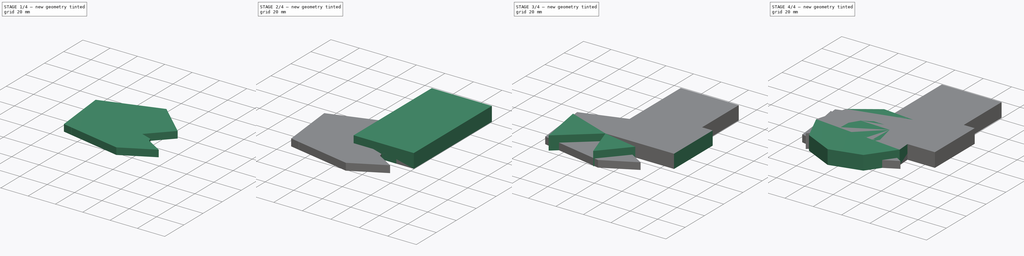
[diagram: build sequence overview — one tinted view per stage of 4, left to right]
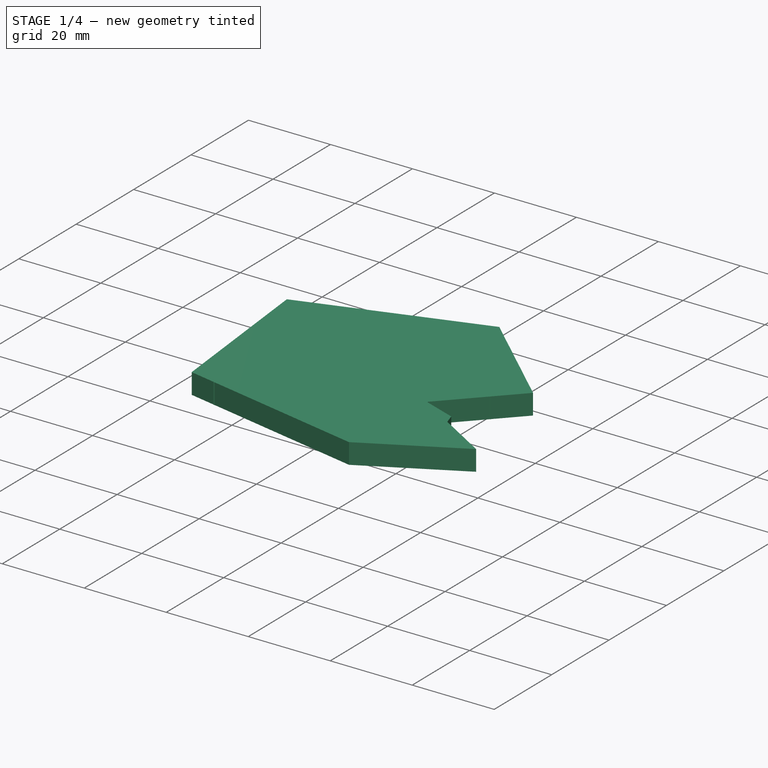
[diagram: stage 1 of 4 — iso view after this stage's code; geometry added in this stage tinted green]
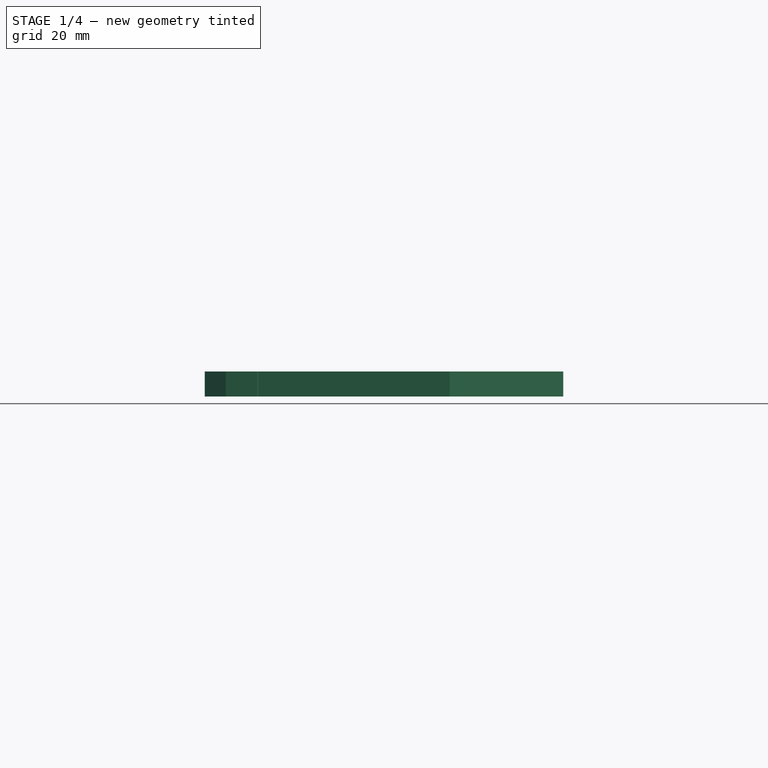
[diagram: stage 1 of 4 — front view after this stage's code; geometry added in this stage tinted green]
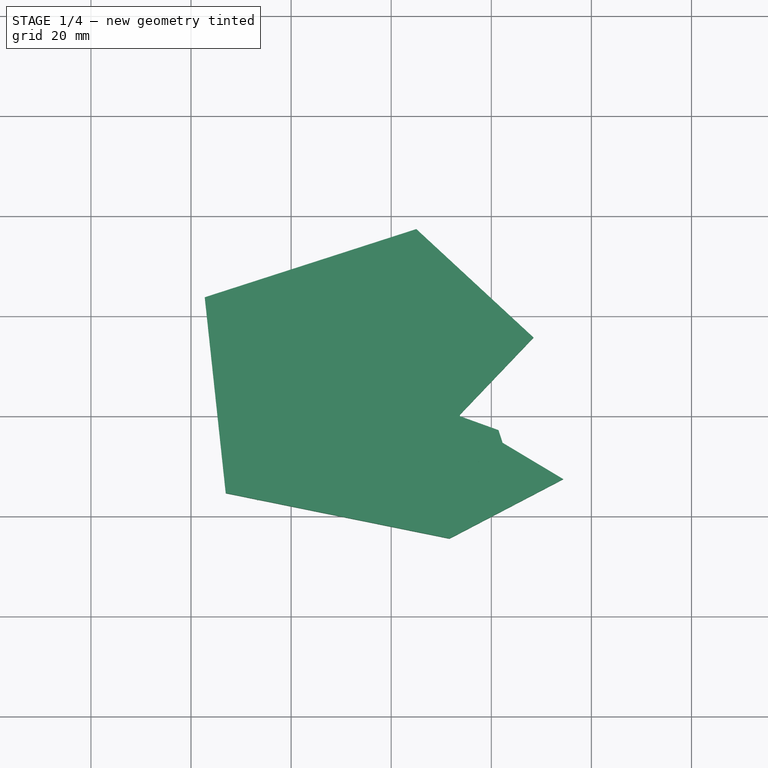
[diagram: stage 1 of 4 — top view after this stage's code; geometry added in this stage tinted green]
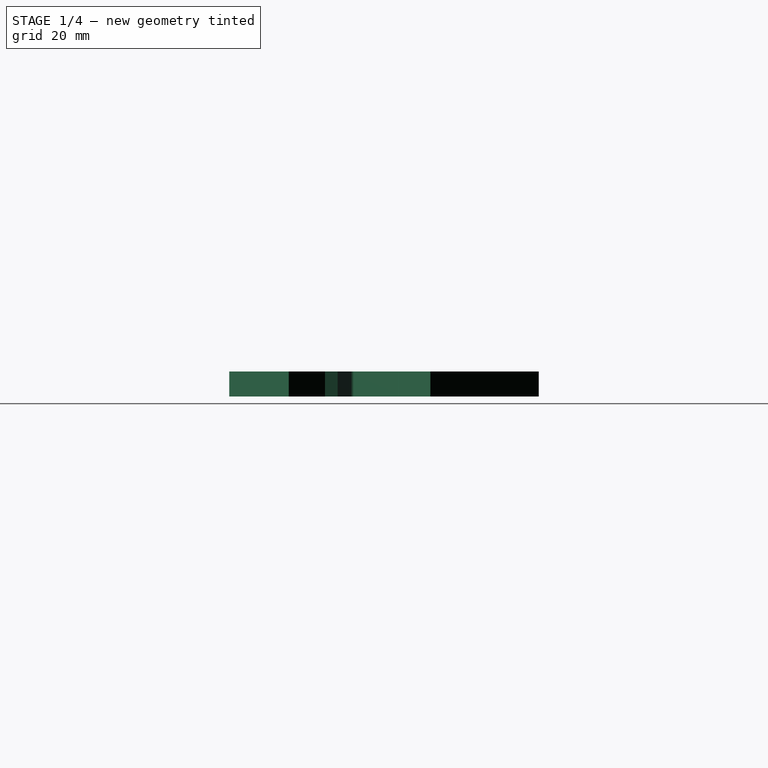
[diagram: stage 1 of 4 — right view after this stage's code; geometry added in this stage tinted green]
FCSTD DOCUMENT  (FreeCAD 0.19R)
Label: Model 09
License: All rights reserved
LicenseURL: http://en.wikipedia.org/wiki/All_rights_reserved
objects: Sketcher::SketchObject×12, PartDesign::Pad×12, PartDesign::Body×12
note: 48 computed .brp shape members not serialized (recipe doc carries the construction recipe); baked Part::Feature solids carry a one-line shape summary decoded from their .brp

FEATURE [PartDesign::Body] Body028
  Group = -> [Sketch031,Pad018]
  Origin = -> Origin019
  Placement = pos=(-42.1888,-78.2414,0) rot=(0,0,1;0rad)
  Tip = -> Pad018
FEATURE [Sketcher::SketchObject] Sketch032
  FullyConstrained = false
  MapMode = 5
  Support = -> [XY_Plane035]
  sketch-geometry (7):
    g0: LineSegment StartX=13.409 StartY=0 StartZ=0 EndX=28.4323 EndY=15.7395 EndZ=0
    g1: LineSegment StartX=28.4323 StartY=15.7395 StartZ=0 EndX=5.02388 EndY=37.401 EndZ=0
    g2: LineSegment StartX=5.02388 StartY=37.401 StartZ=0 EndX=-37.251 EndY=23.7752 EndZ=0
    g3: LineSegment StartX=-37.251 StartY=23.7752 StartZ=0 EndX=-33.0585 EndY=-15.3553 EndZ=0
    g4: LineSegment StartX=-33.0585 StartY=-15.3553 StartZ=0 EndX=11.6621 EndY=-24.4391 EndZ=0
    g5: LineSegment StartX=11.6621 StartY=-24.4391 StartZ=0 EndX=34.3717 EndY=-12.5602 EndZ=0
    g6: LineSegment StartX=34.3717 StartY=-12.5602 StartZ=0 EndX=13.409 EndY=0 EndZ=0
  constraints (8):
    c: PointOnObject(g0,g-1)
    c: Coincident(g0,g1)
    c: Coincident(g1,g2)
    c: Coincident(g2,g3)
    c: Coincident(g3,g4)
    c: Coincident(g4,g5)
    c: Coincident(g5,g6)
    c: Coincident(g6,g0)
FEATURE [PartDesign::Pad] Pad033
  Direction = (1,1,1)
  Length = 5
  Length2 = 100
  Profile = -> Sketch032
  Type = 0
FEATURE [PartDesign::Body] Body033
  Group = -> [Sketch032,Pad033]
  Origin = -> Origin031
  Placement = pos=(-34.3718,-37.401,0) rot=(0,0,1;0rad)
  Tip = -> Pad033
FEATURE [Sketcher::SketchObject] Sketch035
  FullyConstrained = false
  MapMode = 5
  Support = -> [XY_Plane034]
  sketch-geometry (12):
    g0: LineSegment StartX=13.7584 StartY=0 StartZ=0 EndX=12.0115 EndY=9.80005 EndZ=0
    g1: LineSegment StartX=12.0115 StartY=9.80005 StartZ=0 EndX=-4.40937 EndY=11.8963 EndZ=0
    g2: LineSegment StartX=-4.40937 StartY=11.8963 StartZ=0 EndX=-28.5165 EndY=11.8963 EndZ=0
    g3: LineSegment StartX=-28.5165 StartY=11.8963 StartZ=0 EndX=-29.5647 EndY=0 EndZ=0
    g4: LineSegment StartX=-29.5647 StartY=0 StartZ=0 EndX=-24.6734 EndY=-3.47636 EndZ=0
    g5: LineSegment StartX=-24.6734 StartY=-3.47636 StartZ=0 EndX=-26.7696 EndY=-16.7528 EndZ=0
    g6: LineSegment StartX=-26.7696 StartY=-16.7528 StartZ=0 EndX=-8.6019 EndY=-11.1627 EndZ=0
    g7: LineSegment StartX=-8.6019 StartY=-11.1627 StartZ=0 EndX=4.32512 EndY=-16.054 EndZ=0
    g8: LineSegment StartX=4.32512 StartY=-16.054 StartZ=0 EndX=16.5534 EndY=-8.71706 EndZ=0
    g9: LineSegment StartX=16.5534 StartY=-8.71706 StartZ=0 EndX=24.2397 EndY=-11.5121 EndZ=0
    g10: LineSegment StartX=24.2397 StartY=-11.5121 StartZ=0 EndX=21.4447 EndY=-2.77761 EndZ=0
    g11: LineSegment StartX=21.4447 StartY=-2.77761 StartZ=0 EndX=13.7584 EndY=0 EndZ=0
  constraints (15):
    c: PointOnObject(g0,g-1)
    c: Coincident(g0,g1)
    c: Coincident(g1,g2)
    c: Horizontal(g2)
    c: Coincident(g2,g3)
    c: PointOnObject(g3,g-1)
    c: Coincident(g3,g4)
    c: Coincident(g4,g5)
    c: Coincident(g5,g6)
    c: Coincident(g6,g7)
    c: Coincident(g7,g8)
    c: Coincident(g8,g9)
    c: Coincident(g9,g10)
    c: Coincident(g10,g11)
    c: Coincident(g11,g0)
FEATURE [Sketcher::SketchObject] Sketch038
  FullyConstrained = false
  MapMode = 5
  Support = -> [XY_Plane036]
  sketch-geometry (10):
    g0: LineSegment StartX=0 StartY=23.4258 StartZ=0 EndX=7.12016 EndY=10.4988 EndZ=0
    g1: LineSegment StartX=7.12016 StartY=10.4988 StartZ=0 EndX=22.4928 EndY=9.45067 EndZ=0
    g2: LineSegment StartX=22.4928 StartY=9.45067 StartZ=0 EndX=8.16829 EndY=-2.07885 EndZ=0
    g3: LineSegment StartX=8.16829 StartY=-2.07885 StartZ=0 EndX=14.1077 EndY=-16.7528 EndZ=0
    g4: LineSegment StartX=14.1077 StartY=-16.7528 StartZ=0 EndX=0 EndY=-10.1146 EndZ=0
    g5: LineSegment StartX=0 StartY=-10.1146 StartZ=0 EndX=-11.0476 EndY=-18.1503 EndZ=0
    g6: LineSegment StartX=-11.0476 StartY=-18.1503 StartZ=0 EndX=-7.90316 EndY=0 EndZ=0
    g7: LineSegment StartX=-7.90316 StartY=0 StartZ=0 EndX=-19.0833 EndY=10.4988 EndZ=0
    g8: LineSegment StartX=-19.0833 StartY=10.4988 StartZ=0 EndX=-6.50564 EndY=10.4988 EndZ=0
    g9: LineSegment StartX=-6.50564 StartY=10.4988 StartZ=0 EndX=0 EndY=23.4258 EndZ=0
  constraints (14):
    c: PointOnObject(g0,g-2)
    c: Coincident(g0,g1)
    c: Coincident(g1,g2)
    c: Coincident(g2,g3)
    c: Coincident(g3,g4)
    c: PointOnObject(g4,g-2)
    c: Coincident(g4,g5)
    c: Coincident(g5,g6)
    c: PointOnObject(g6,g-1)
    c: Coincident(g6,g7)
    c: Coincident(g7,g8)
    c: Horizontal(g8)
    c: Coincident(g8,g9)
    c: Coincident(g9,g0)
FEATURE [PartDesign::Pad] Pad034
  Direction = (1,1,1)
  Length = 5
  Length2 = 100
  Profile = -> Sketch038
  Type = 0
FEATURE [PartDesign::Body] Body036
  Group = -> [Sketch038,Pad034]
  Origin = -> Origin036
  Placement = pos=(-22.4928,-23.4258,0) rot=(0,0,1;0rad)
  Tip = -> Pad034
FEATURE [PartDesign::Pad] Pad037
  Direction = (1,1,1)
  Length = 5
  Length2 = 100
  Profile = -> Sketch035
  Type = 0
FEATURE [PartDesign::Body] Body034
  Group = -> [Sketch035,Pad037]
  Origin = -> Origin032
  Placement = pos=(-24.2397,-11.8963,0) rot=(0,0,1;0rad)
  Tip = -> Pad037
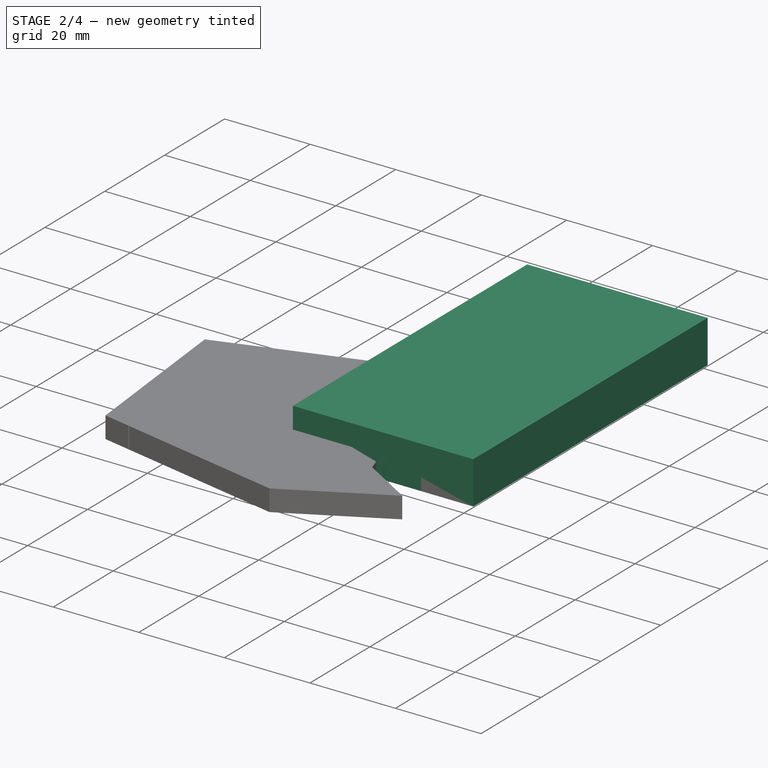
[diagram: stage 2 of 4 — iso view after this stage's code; geometry added in this stage tinted green]
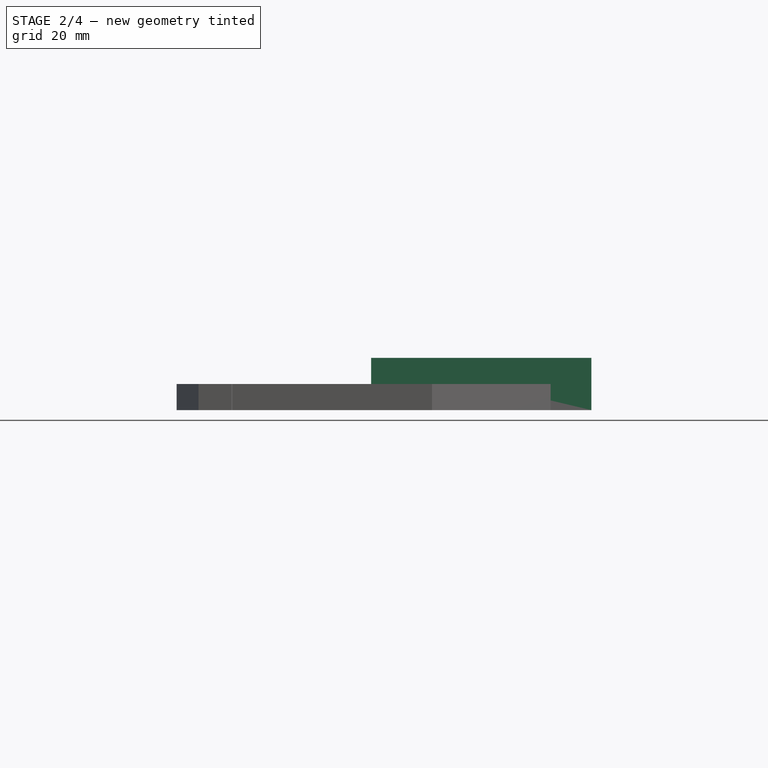
[diagram: stage 2 of 4 — front view after this stage's code; geometry added in this stage tinted green]
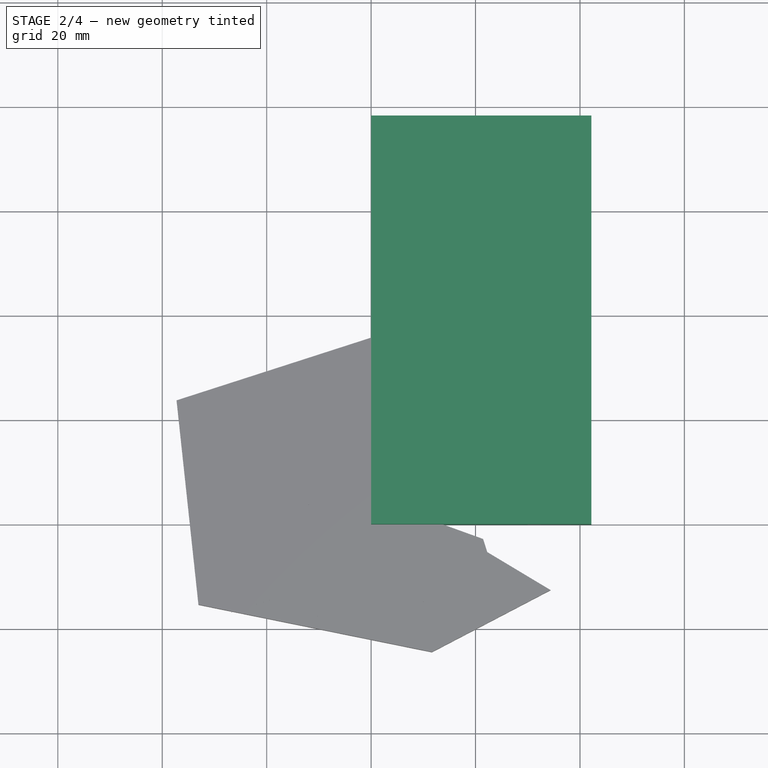
[diagram: stage 2 of 4 — top view after this stage's code; geometry added in this stage tinted green]
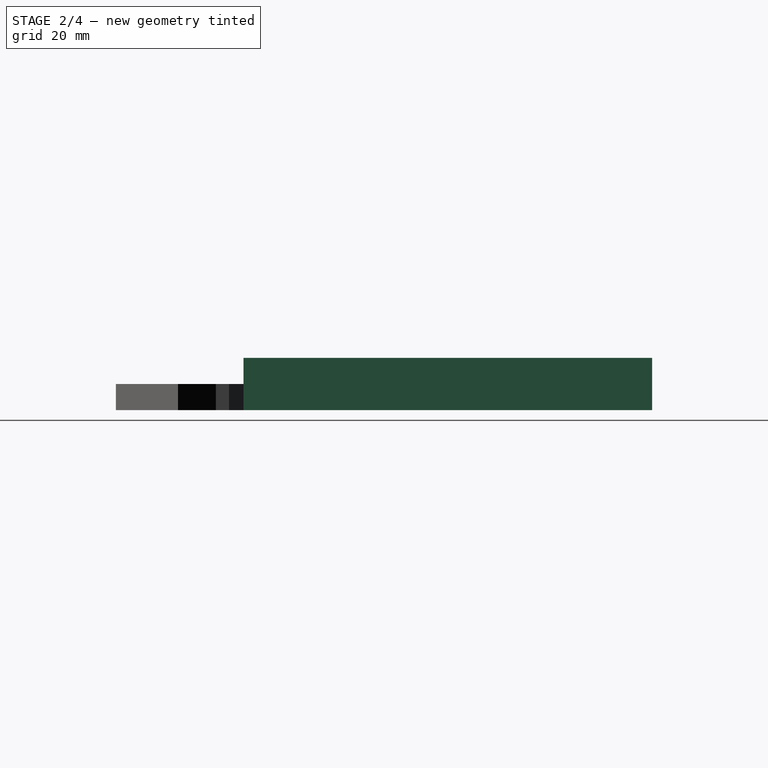
[diagram: stage 2 of 4 — right view after this stage's code; geometry added in this stage tinted green]
FEATURE [PartDesign::Body] Body014
  Group = -> [Sketch015,Pad015]
  Origin = -> Origin014
  Placement = pos=(0,-11.8118,0) rot=(0,0,1;0rad)
  Tip = -> Pad015
FEATURE [Sketcher::SketchObject] Sketch020
  FullyConstrained = false
  MapMode = 5
  Support = -> [XY_Plane019]
  sketch-geometry (4):
    g0: LineSegment StartX=0 StartY=0 StartZ=0 EndX=20.0157 EndY=0 EndZ=0
    g1: LineSegment StartX=20.0157 StartY=0 StartZ=0 EndX=20.0157 EndY=44.9765 EndZ=0
    g2: LineSegment StartX=20.0157 StartY=44.9765 StartZ=0 EndX=0 EndY=44.9765 EndZ=0
    g3: LineSegment StartX=0 StartY=44.9765 StartZ=0 EndX=0 EndY=0 EndZ=0
  constraints (9):
    c: Coincident(g0,g1)
    c: Coincident(g1,g2)
    c: Coincident(g2,g3)
    c: Coincident(g3,g0)
    c: Horizontal(g0)
    c: Horizontal(g2)
    c: Vertical(g1)
    c: Vertical(g3)
    c: Coincident(g0,g-1)
FEATURE [PartDesign::Pad] Pad020
  Direction = (1,1,1)
  Length = 10
  Length2 = 100
  Profile = -> Sketch020
  Type = 0
FEATURE [PartDesign::Body] Body024
  Group = -> [Sketch026,Pad022]
  Origin = -> Origin023
  Placement = pos=(-49.8752,-40.1592,0) rot=(0,0,1;0rad)
  Tip = -> Pad022
FEATURE [Sketcher::SketchObject] Sketch029
  FullyConstrained = false
  MapMode = 5
  Support = -> [XY_Plane023]
  sketch-geometry (4):
    g0: LineSegment StartX=0 StartY=0 StartZ=0 EndX=29.9606 EndY=0 EndZ=0
    g1: LineSegment StartX=29.9606 StartY=0 StartZ=0 EndX=29.9606 EndY=30.0272 EndZ=0
    g2: LineSegment StartX=29.9606 StartY=30.0272 StartZ=0 EndX=0 EndY=30.0272 EndZ=0
    g3: LineSegment StartX=0 StartY=30.0272 StartZ=0 EndX=0 EndY=0 EndZ=0
  constraints (9):
    c: Coincident(g0,g1)
    c: Coincident(g1,g2)
    c: Coincident(g2,g3)
    c: Coincident(g3,g0)
    c: Horizontal(g0)
    c: Horizontal(g2)
    c: Vertical(g1)
    c: Vertical(g3)
    c: Coincident(g0,g-1)
FEATURE [PartDesign::Pad] Pad021
  Direction = (1,1,1)
  Length = 10
  Length2 = 100
  Profile = -> Sketch029
  Type = 0
FEATURE [PartDesign::Body] Body026
  Group = -> [Sketch029,Pad021]
  Origin = -> Origin029
  Placement = pos=(-29.9606,-30.0272,0) rot=(0,0,1;0rad)
  Tip = -> Pad021
FEATURE [PartDesign::Body] Body030
  Group = -> [Sketch020,Pad020]
  Origin = -> Origin028
  Placement = pos=(-20.0157,-44.9765,0) rot=(0,0,1;0rad)
  Tip = -> Pad020
FEATURE [Sketcher::SketchObject] Sketch031
  FullyConstrained = false
  MapMode = 5
  Support = -> [XY_Plane020]
  sketch-geometry (4):
    g0: LineSegment StartX=0 StartY=0 StartZ=0 EndX=42.1888 EndY=0 EndZ=0
    g1: LineSegment StartX=42.1888 StartY=0 StartZ=0 EndX=42.1888 EndY=78.2414 EndZ=0
    g2: LineSegment StartX=42.1888 StartY=78.2414 StartZ=0 EndX=0 EndY=78.2414 EndZ=0
    g3: LineSegment StartX=0 StartY=78.2414 StartZ=0 EndX=0 EndY=0 EndZ=0
  constraints (9):
    c: Coincident(g0,g1)
    c: Coincident(g1,g2)
    c: Coincident(g2,g3)
    c: Coincident(g3,g0)
    c: Horizontal(g0)
    c: Horizontal(g2)
    c: Vertical(g1)
    c: Vertical(g3)
    c: Coincident(g0,g-1)
FEATURE [PartDesign::Pad] Pad018
  Direction = (1,1,1)
  Length = 10
  Length2 = 100
  Profile = -> Sketch031
  Type = 0
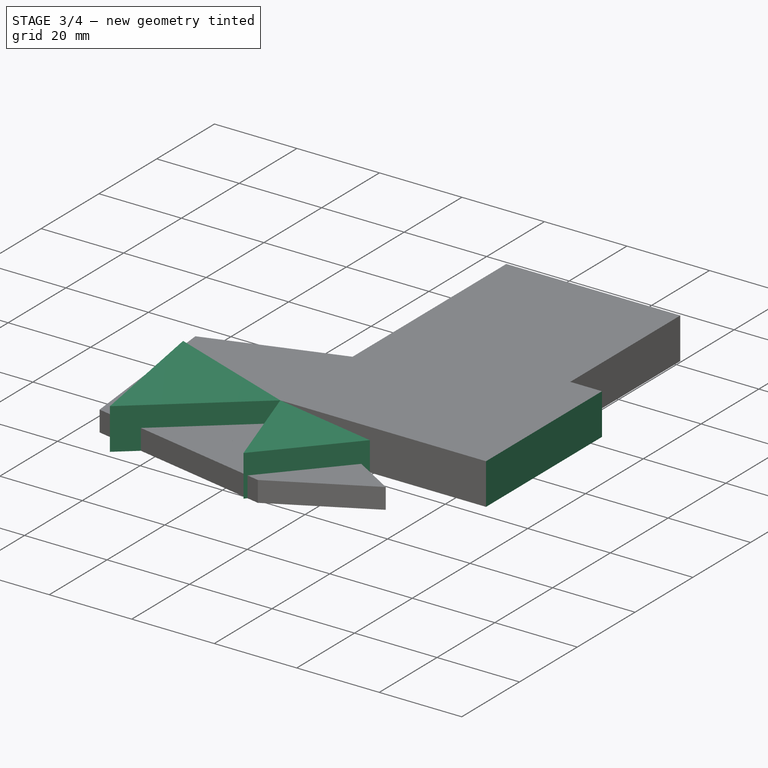
[diagram: stage 3 of 4 — iso view after this stage's code; geometry added in this stage tinted green]
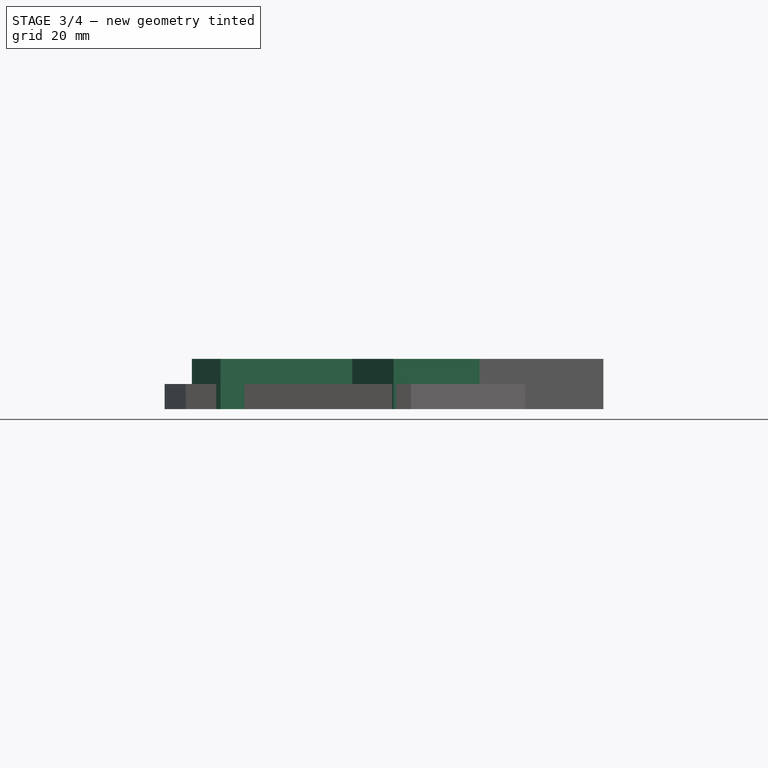
[diagram: stage 3 of 4 — front view after this stage's code; geometry added in this stage tinted green]
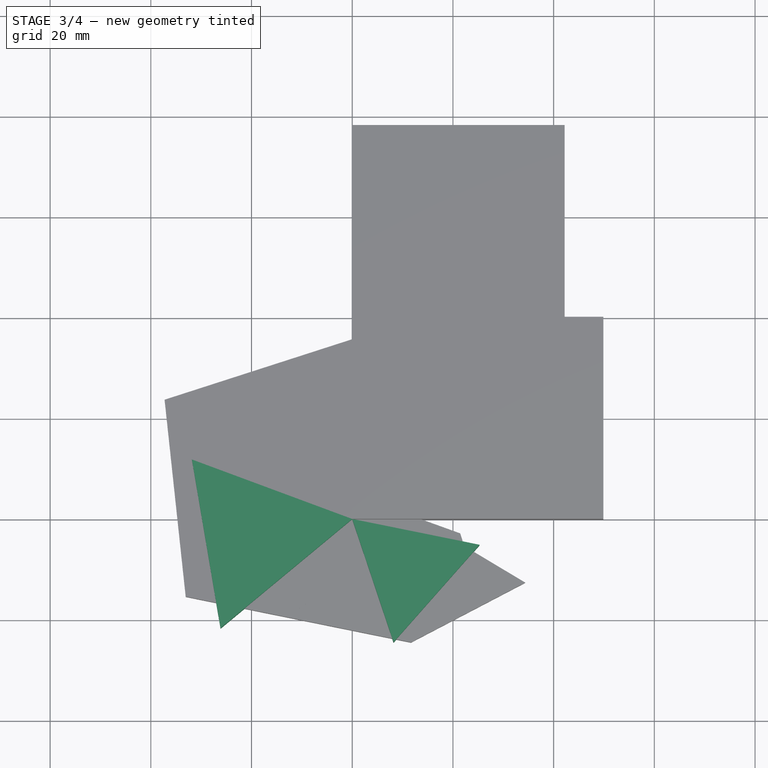
[diagram: stage 3 of 4 — top view after this stage's code; geometry added in this stage tinted green]
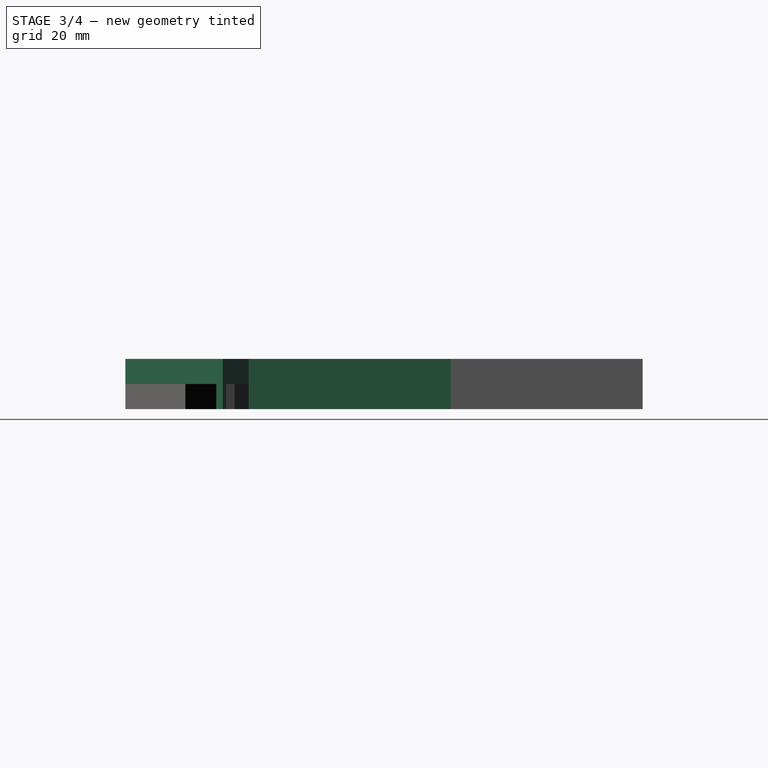
[diagram: stage 3 of 4 — right view after this stage's code; geometry added in this stage tinted green]
FEATURE [PartDesign::Body] Body005
  Group = -> [Sketch005,Pad005]
  Origin = -> Origin005
  Placement = pos=(-13.3377,-17.1407,0) rot=(0,0,1;0rad)
  Tip = -> Pad005
FEATURE [Sketcher::SketchObject] Sketch011
  FullyConstrained = false
  MapMode = 5
  Support = -> [XY_Plane013]
  sketch-geometry (4):
    g0: LineSegment StartX=0 StartY=0 StartZ=0 EndX=8.20584 EndY=-24.4653 EndZ=0
    g1: LineSegment StartX=8.20584 StartY=-24.4653 StartZ=0 EndX=25.2905 EndY=-5.12617 EndZ=0
    g2: LineSegment StartX=25.2905 StartY=-5.12617 StartZ=0 EndX=0 EndY=0 EndZ=0
    g3: Circle CenterX=11.1654 CenterY=-9.86381 CenterZ=0 NormalX=0 NormalY=0 NormalZ=1 AngleXU=0 Radius=14.8984
  constraints (9):
    c: Coincident(g0,g1)
    c: Coincident(g1,g2)
    c: Coincident(g2,g0)
    c: Equal(g0,g1)
    c: Equal(g0,g2)
    c: PointOnObject(g0,g3)
    c: PointOnObject(g1,g3)
    c: PointOnObject(g2,g3)
    c: Coincident(g2,g-1)
FEATURE [PartDesign::Pad] Pad010
  Direction = (1,1,1)
  Length = 10
  Length2 = 100
  Profile = -> Sketch011
  Type = 0
FEATURE [PartDesign::Body] Body013
  Group = -> [Sketch011,Pad010]
  Origin = -> Origin013
  Placement = pos=(-25.2905,0,0) rot=(0,0,1;0rad)
  Tip = -> Pad010
FEATURE [Sketcher::SketchObject] Sketch015
  FullyConstrained = false
  MapMode = 5
  Support = -> [XY_Plane014]
  sketch-geometry (4):
    g0: LineSegment StartX=0 StartY=0 StartZ=0 EndX=-31.8356 EndY=11.8118 EndZ=0
    g1: LineSegment StartX=-31.8356 StartY=11.8118 StartZ=0 EndX=-26.1471 EndY=-21.6645 EndZ=0
    g2: LineSegment StartX=-26.1471 StartY=-21.6645 StartZ=0 EndX=0 EndY=0 EndZ=0
    g3: Circle CenterX=-19.3275 CenterY=-3.28425 CenterZ=0 NormalX=0 NormalY=0 NormalZ=1 AngleXU=0 Radius=19.6046
  constraints (9):
    c: Coincident(g0,g1)
    c: Coincident(g1,g2)
    c: Coincident(g2,g0)
    c: Equal(g0,g1)
    c: Equal(g0,g2)
    c: PointOnObject(g0,g3)
    c: PointOnObject(g1,g3)
    c: PointOnObject(g2,g3)
    c: Coincident(g2,g-1)
FEATURE [PartDesign::Pad] Pad015
  Direction = (1,1,1)
  Length = 10
  Length2 = 100
  Profile = -> Sketch015
  Type = 0
FEATURE [Sketcher::SketchObject] Sketch026
  FullyConstrained = false
  MapMode = 5
  Support = -> [XY_Plane025]
  sketch-geometry (4):
    g0: LineSegment StartX=0 StartY=0 StartZ=0 EndX=49.8752 EndY=0 EndZ=0
    g1: LineSegment StartX=49.8752 StartY=0 StartZ=0 EndX=49.8752 EndY=40.1592 EndZ=0
    g2: LineSegment StartX=49.8752 StartY=40.1592 StartZ=0 EndX=0 EndY=40.1592 EndZ=0
    g3: LineSegment StartX=0 StartY=40.1592 StartZ=0 EndX=0 EndY=0 EndZ=0
  constraints (9):
    c: Coincident(g0,g1)
    c: Coincident(g1,g2)
    c: Coincident(g2,g3)
    c: Coincident(g3,g0)
    c: Horizontal(g0)
    c: Horizontal(g2)
    c: Vertical(g1)
    c: Vertical(g3)
    c: Coincident(g0,g-1)
FEATURE [PartDesign::Pad] Pad022
  Direction = (1,1,1)
  Length = 10
  Length2 = 100
  Profile = -> Sketch026
  Type = 0
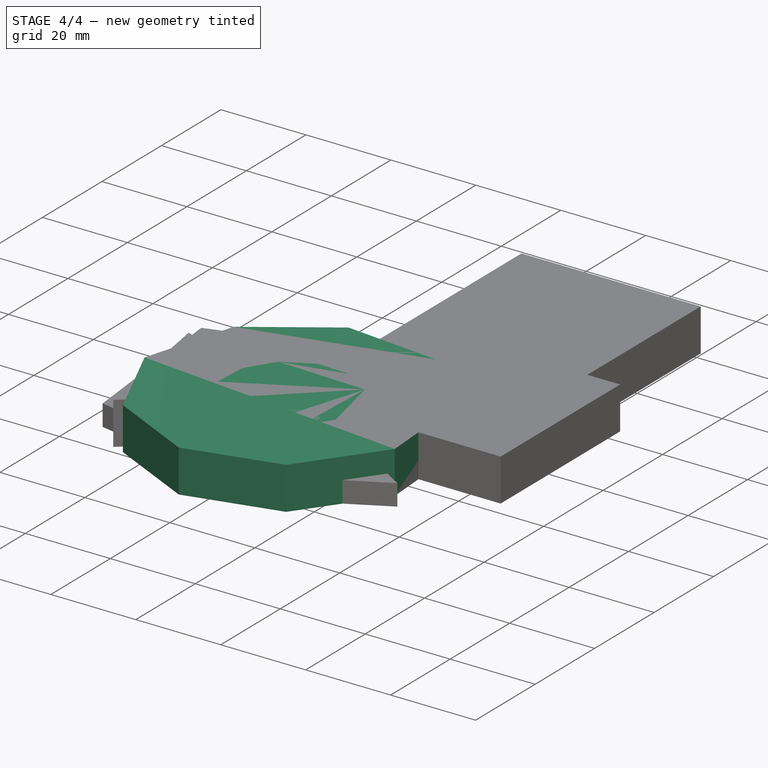
[diagram: stage 4 of 4 — iso view after this stage's code; geometry added in this stage tinted green]
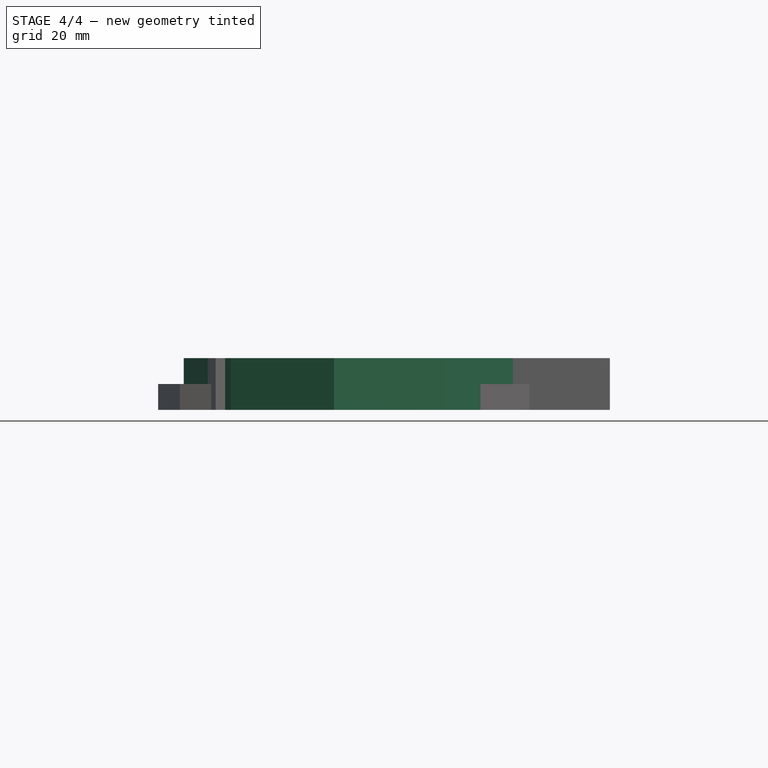
[diagram: stage 4 of 4 — front view after this stage's code; geometry added in this stage tinted green]
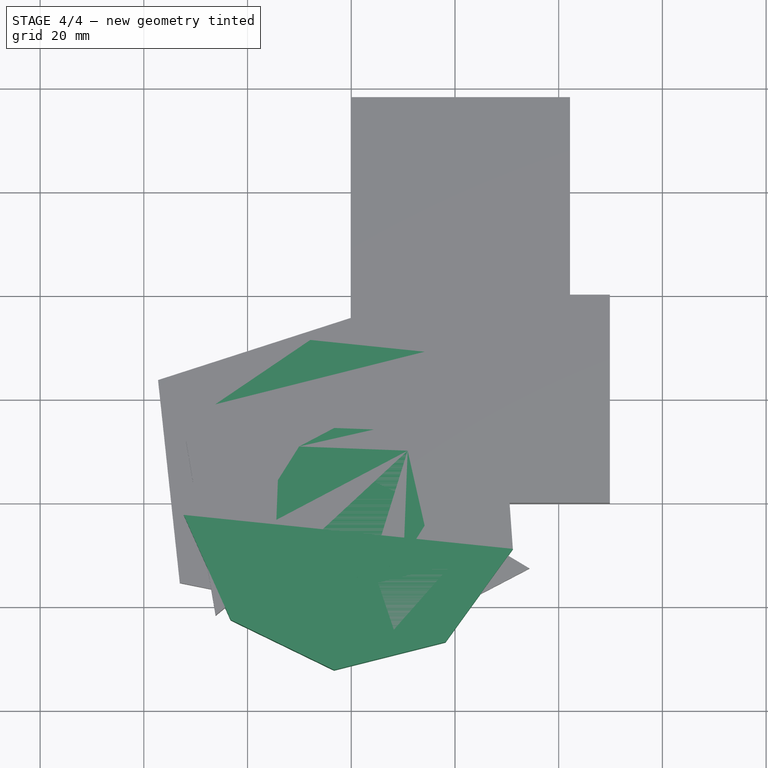
[diagram: stage 4 of 4 — top view after this stage's code; geometry added in this stage tinted green]
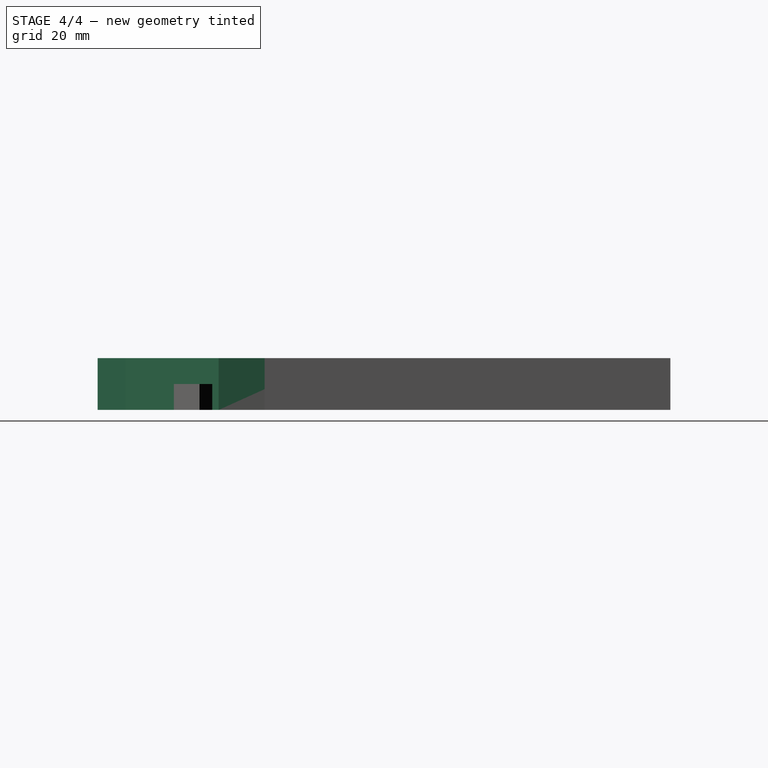
[diagram: stage 4 of 4 — right view after this stage's code; geometry added in this stage tinted green]
FEATURE [Sketcher::SketchObject] Sketch
  FullyConstrained = false
  MapMode = 5
  Support = -> [XY_Plane]
  sketch-geometry (10):
    g0: LineSegment StartX=18.1672 StartY=-26.824 StartZ=0 EndX=31.1591 EndY=-8.87074 EndZ=0
    g1: LineSegment StartX=31.1591 StartY=-8.87074 StartZ=0 EndX=29.5712 EndY=13.2333 EndZ=0
    g2: LineSegment StartX=29.5712 StartY=13.2333 StartZ=0 EndX=14.1467 EndY=29.1453 EndZ=0
    g3: LineSegment StartX=14.1467 StartY=29.1453 StartZ=0 EndX=-7.89726 EndY=31.4199 EndZ=0
    g4: LineSegment StartX=-7.89726 StartY=31.4199 StartZ=0 EndX=-26.246 EndY=18.9928 EndZ=0
    g5: LineSegment StartX=-26.246 StartY=18.9928 StartZ=0 EndX=-32.3139 EndY=-2.32127 EndZ=0
    g6: LineSegment StartX=-32.3139 StartY=-2.32127 StartZ=0 EndX=-23.2618 EndY=-22.5492 EndZ=0
    g7: LineSegment StartX=-23.2618 StartY=-22.5492 StartZ=0 EndX=-3.32525 EndY=-32.2261 EndZ=0
    g8: LineSegment StartX=-3.32525 StartY=-32.2261 StartZ=0 EndX=18.1672 EndY=-26.824 EndZ=0
    g9: Circle CenterX=0 CenterY=0 CenterZ=0 NormalX=0 NormalY=0 NormalZ=1 AngleXU=0 Radius=32.3972
  constraints (20):
    c: Coincident(g0,g1)
    c: Coincident(g1,g2)
    c: Coincident(g2,g3)
    c: Coincident(g3,g4)
    c: Coincident(g4,g5)
    c: Coincident(g5,g6)
    c: Coincident(g6,g7)
    c: Coincident(g7,g8)
    c: Coincident(g8,g0)
    c: Equal(g0, g1-g8) x8
    c: PointOnObject(g0,g9)
    c: PointOnObject(g1,g9)
    c: PointOnObject(g2,g9)
    c: PointOnObject(g3,g9)
    c: PointOnObject(g4,g9)
    c: PointOnObject(g5,g9)
    c: PointOnObject(g6,g9)
    c: PointOnObject(g7,g9)
    c: PointOnObject(g8,g9)
    c: Coincident(g9,g-1)
FEATURE [PartDesign::Pad] Pad
  Direction = (1,1,1)
  Length = 10
  Length2 = 100
  Profile = -> Sketch
  Type = 0
FEATURE [PartDesign::Body] Body
  Group = -> [Sketch,Pad]
  Origin = -> Origin
  Placement = pos=(-31.1591,-31.4199,0) rot=(0,0,1;0rad)
  Tip = -> Pad
FEATURE [Sketcher::SketchObject] Sketch001
  FullyConstrained = false
  MapMode = 5
  Support = -> [XY_Plane001]
  sketch-geometry (13):
    g0: LineSegment StartX=-14.1465 StartY=4.38587 StartZ=0 EndX=-14.4442 EndY=-3.27498 EndZ=0
    g1: LineSegment StartX=-14.4442 StartY=-3.27498 StartZ=0 EndX=-10.8715 EndY=-10.0583 EndZ=0
    g2: LineSegment StartX=-10.8715 StartY=-10.0583 StartZ=0 EndX=-4.38587 EndY=-14.1465 EndZ=0
    g3: LineSegment StartX=-4.38587 StartY=-14.1465 StartZ=0 EndX=3.27498 EndY=-14.4442 EndZ=0
    g4: LineSegment StartX=3.27498 StartY=-14.4442 StartZ=0 EndX=10.0583 EndY=-10.8715 EndZ=0
    g5: LineSegment StartX=10.0583 StartY=-10.8715 StartZ=0 EndX=14.1465 EndY=-4.38587 EndZ=0
    g6: LineSegment StartX=14.1465 StartY=-4.38587 StartZ=0 EndX=14.4442 EndY=3.27498 EndZ=0
    g7: LineSegment StartX=14.4442 StartY=3.27498 StartZ=0 EndX=10.8715 EndY=10.0583 EndZ=0
    g8: LineSegment StartX=10.8715 StartY=10.0583 StartZ=0 EndX=4.38587 EndY=14.1465 EndZ=0
    g9: LineSegment StartX=4.38587 StartY=14.1465 StartZ=0 EndX=-3.27498 EndY=14.4442 EndZ=0
    g10: LineSegment StartX=-3.27498 StartY=14.4442 StartZ=0 EndX=-10.0583 EndY=10.8715 EndZ=0
    g11: LineSegment StartX=-10.0583 StartY=10.8715 StartZ=0 EndX=-14.1465 EndY=4.38587 EndZ=0
    g12: Circle CenterX=0 CenterY=0 CenterZ=0 NormalX=0 NormalY=0 NormalZ=1 AngleXU=0 Radius=14.8108
  constraints (26):
    c: Coincident(g0,g1)
    c: Coincident(g1,g2)
    c: Coincident(g2,g3)
    c: Coincident(g3,g4)
    c: Coincident(g4,g5)
    c: Coincident(g5,g6)
    c: Coincident(g6,g7)
    c: Coincident(g7,g8)
    c: Coincident(g8,g9)
    c: Coincident(g9,g10)
    c: Coincident(g10,g11)
    c: Coincident(g11,g0)
    c: Equal(g0, g1-g11) x11
    c: PointOnObject(g0,g12)
    c: PointOnObject(g1,g12)
    c: PointOnObject(g2,g12)
    c: PointOnObject(g3,g12)
    c: PointOnObject(g4,g12)
    c: PointOnObject(g5,g12)
    c: PointOnObject(g6,g12)
    c: PointOnObject(g7,g12)
    c: PointOnObject(g8,g12)
    c: PointOnObject(g9,g12)
    c: PointOnObject(g10,g12)
    c: PointOnObject(g11,g12)
    c: Coincident(g12,g-1)
FEATURE [PartDesign::Pad] Pad001
  Direction = (1,1,1)
  Length = 10
  Length2 = 100
  Profile = -> Sketch001
  Type = 0
FEATURE [PartDesign::Body] Body001
  Group = -> [Sketch001,Pad001]
  Origin = -> Origin001
  Placement = pos=(-14.4442,-14.4442,0) rot=(0,0,1;0rad)
  Tip = -> Pad001
FEATURE [Sketcher::SketchObject] Sketch005
  FullyConstrained = false
  MapMode = 5
  Support = -> [XY_Plane005]
  sketch-geometry (7):
    g0: LineSegment StartX=8.91799 StartY=0 StartZ=0 EndX=13.3377 EndY=8.72222 EndZ=0
    g1: LineSegment StartX=13.3377 StartY=8.72222 StartZ=0 EndX=4.07736 EndY=17.1407 EndZ=0
    g2: LineSegment StartX=4.07736 StartY=17.1407 StartZ=0 EndX=-8.0242 EndY=17.1407 EndZ=0
    g3: LineSegment StartX=-8.0242 StartY=17.1407 StartZ=0 EndX=-17.6002 EndY=1.77698 EndZ=0
    g4: LineSegment StartX=-17.6002 StartY=1.77698 StartZ=0 EndX=-4.76204 EndY=-10.8507 EndZ=0
    g5: LineSegment StartX=-4.76204 StartY=-10.8507 StartZ=0 EndX=0.920433 EndY=-10.8507 EndZ=0
    g6: LineSegment StartX=0.920433 StartY=-10.8507 StartZ=0 EndX=8.91799 EndY=0 EndZ=0
  constraints (10):
    c: PointOnObject(g0,g-1)
    c: Coincident(g0,g1)
    c: Coincident(g1,g2)
    c: Horizontal(g2)
    c: Coincident(g2,g3)
    c: Coincident(g3,g4)
    c: Coincident(g4,g5)
    c: Horizontal(g5)
    c: Coincident(g5,g6)
    c: Coincident(g6,g0)
FEATURE [PartDesign::Pad] Pad005
  Direction = (1,1,1)
  Length = 5
  Length2 = 100
  Profile = -> Sketch005
  Type = 0
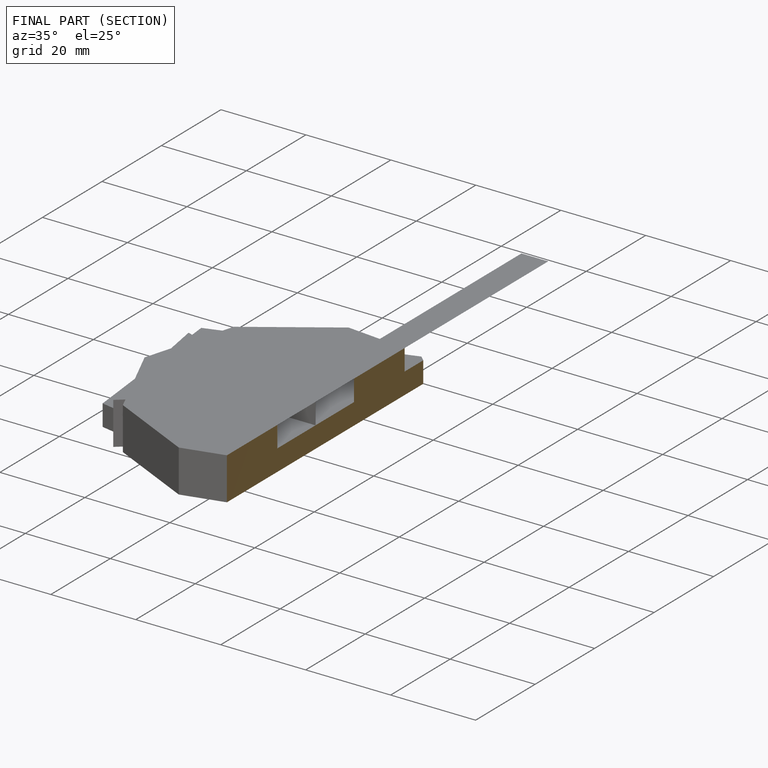
[diagram: finished part — half-section view (interior)]
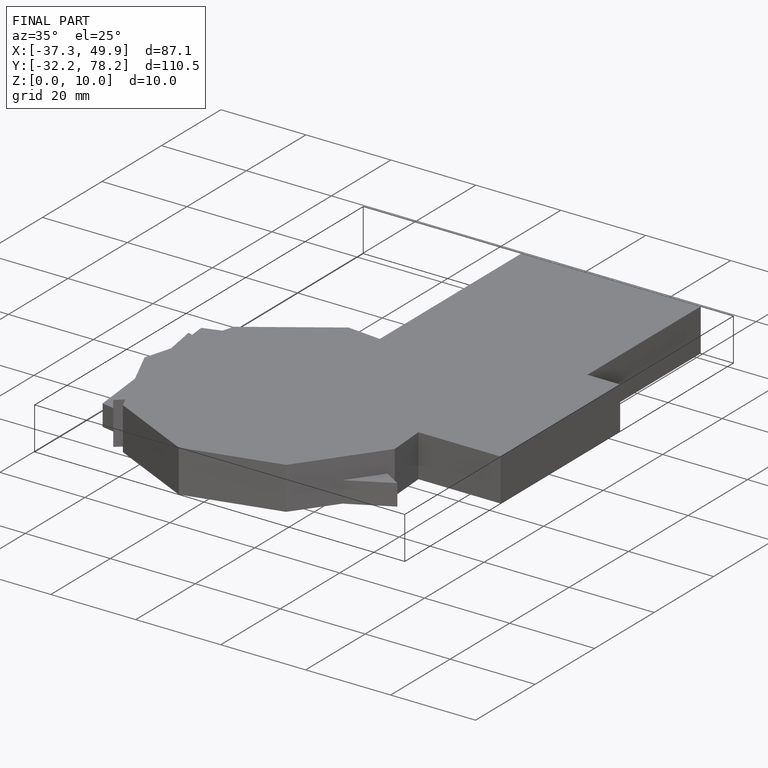
[diagram: finished part — iso view with bounding-box wireframe]
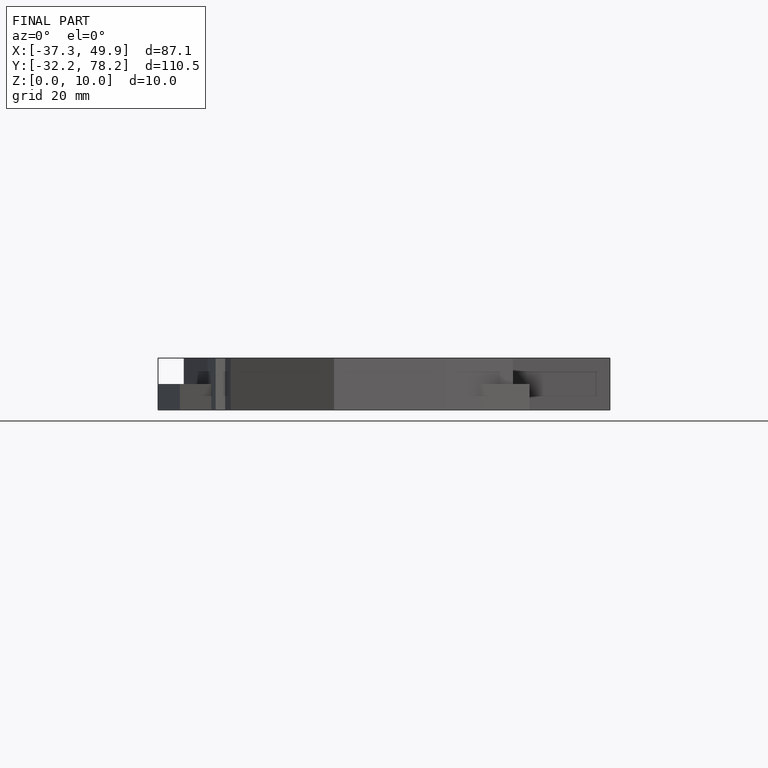
[diagram: finished part — front view with bounding-box wireframe]
